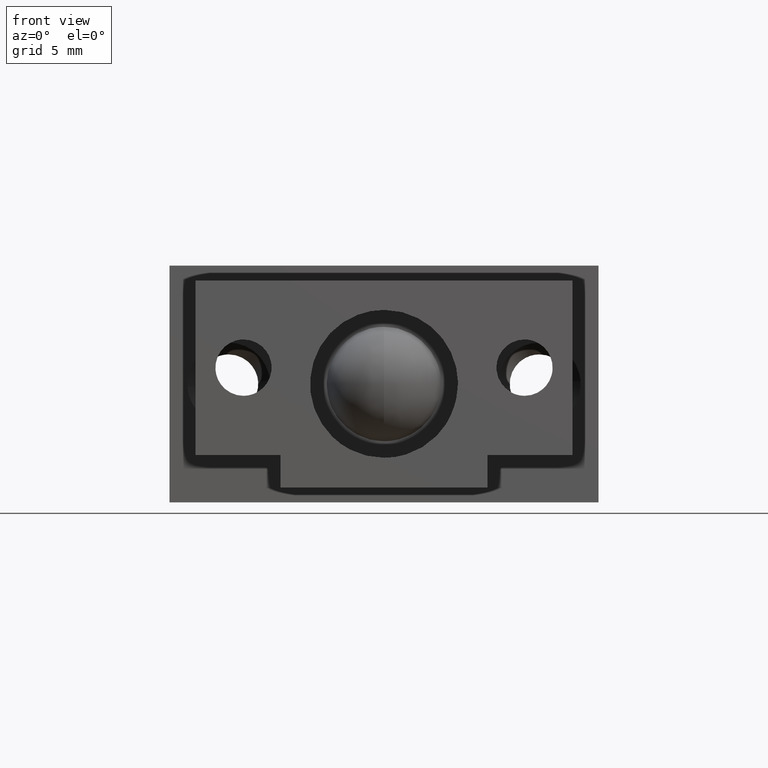
[diagram: clean part render]
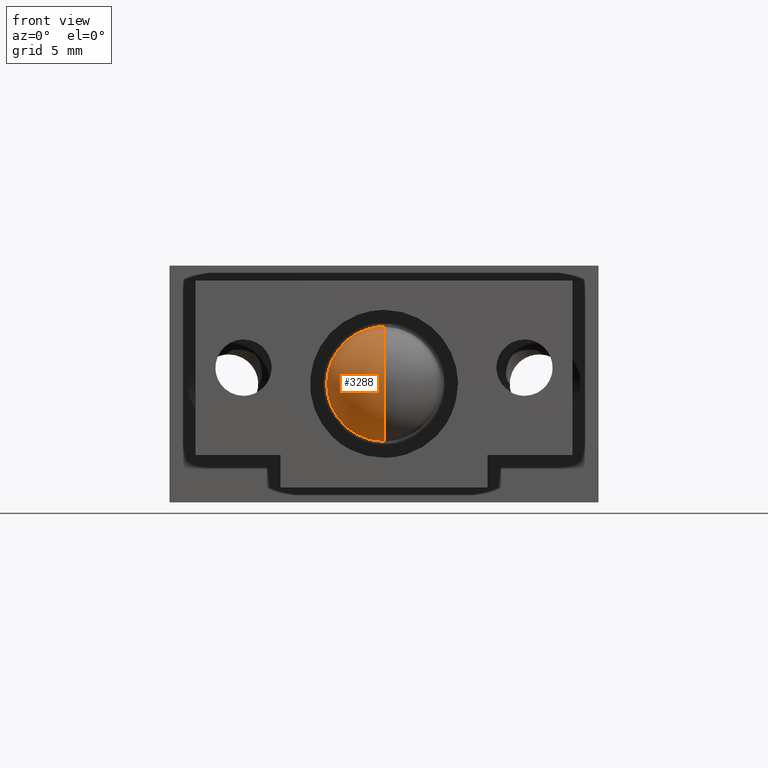
[diagram: same view with one face highlighted and labeled with its STEP entity id]
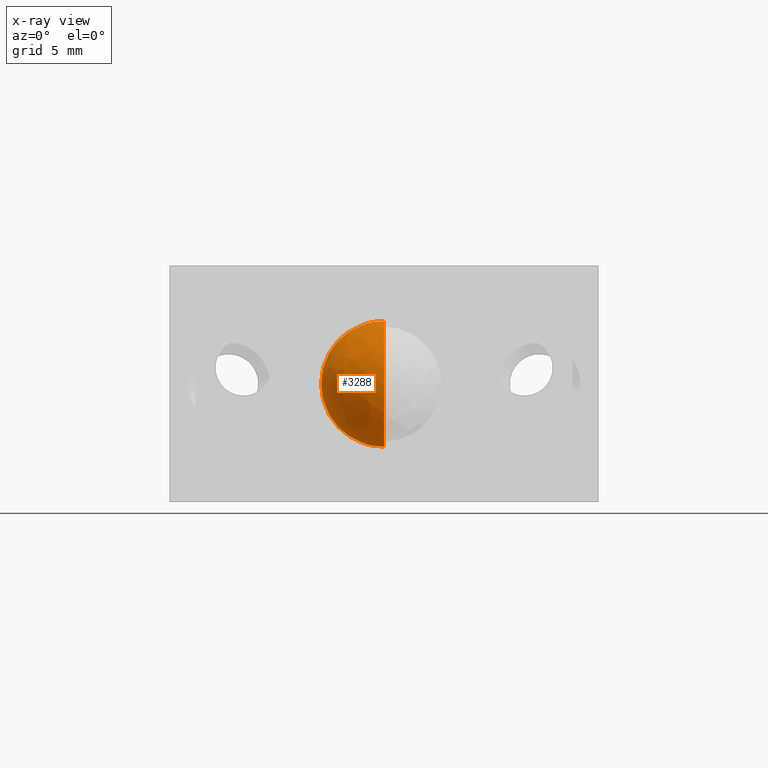
[diagram: x-ray of the same camera — body ghosted, the highlighted face saturated]
A machine part, front view. The second image highlights one B-rep face of the part: STEP entity #3288.
The next image is the same camera in x-ray: the body ghosted, the highlighted face saturated — about 0% of this face is hidden behind the body in this view.
In plain terms, the highlighted face is a freeform B-spline surface patch.
Its self-contained STEP definition (entity closure, byte-faithful):
#3203=CARTESIAN_POINT('',(0.0,-2.500000000000000,2.525751E-015));
#3204=VERTEX_POINT('',#3203);
#3205=CARTESIAN_POINT('',(0.0,6.0,2.525751E-015));
#3206=VERTEX_POINT('',#3205);
#3207=CARTESIAN_POINT('',(0.0,-2.500000000000000,2.525751E-015));
#3208=CARTESIAN_POINT('',(0.0,-2.500000000000000,-4.249999999999998));
#3209=CARTESIAN_POINT('',(0.0,1.750000000000000,-4.249999999999997));
#3210=CARTESIAN_POINT('',(0.0,6.0,-4.249999999999998));
#3211=CARTESIAN_POINT('',(0.0,6.0,2.525751E-015));
#3219=(BOUNDED_CURVE()B_SPLINE_CURVE(2,(#3207,#3208,#3209,#3210,#3211),.UNSPECIFIED.,.F.,.U.)B_SPLINE_CURVE_WITH_KNOTS((3,2,3),(0.0,0.500000000000000,1.0),.UNSPECIFIED.)CURVE()GEOMETRIC_REPRESENTATION_ITEM()RATIONAL_B_SPLINE_CURVE((1.0,0.707106781186548,1.0,0.707106781186548,1.0))REPRESENTATION_ITEM(''));
#3220=EDGE_CURVE('',#3204,#3206,#3219,.T.);
#3222=CARTESIAN_POINT('',(0.0,-2.500000000000000,2.525751E-015));
#3223=CARTESIAN_POINT('',(0.0,-2.500000000000000,4.250000000000003));
#3224=CARTESIAN_POINT('',(0.0,1.750000000000000,4.250000000000003));
#3225=CARTESIAN_POINT('',(0.0,6.0,4.250000000000003));
#3226=CARTESIAN_POINT('',(0.0,6.0,2.525751E-015));
#3234=(BOUNDED_CURVE()B_SPLINE_CURVE(2,(#3222,#3223,#3224,#3225,#3226),.UNSPECIFIED.,.F.,.U.)B_SPLINE_CURVE_WITH_KNOTS((3,2,3),(0.0,0.500000000000000,1.0),.UNSPECIFIED.)CURVE()GEOMETRIC_REPRESENTATION_ITEM()RATIONAL_B_SPLINE_CURVE((1.0,0.707106781186548,1.0,0.707106781186548,1.0))REPRESENTATION_ITEM(''));
#3235=EDGE_CURVE('',#3204,#3206,#3234,.T.);
#3240=CARTESIAN_POINT('',(1.593750000000000,-1.035898502951965,2.785898502951967));
#3241=CARTESIAN_POINT('',(1.042452830188680,-0.773077889465930,3.364103852621243));
#3242=CARTESIAN_POINT('',(0.202380952380953,0.688705332208776,4.245178671164901));
#3243=CARTESIAN_POINT('',(0.202380952380953,2.811294667791224,4.245178671164901));
#3244=CARTESIAN_POINT('',(1.042452830188680,4.273077889465928,3.364103852621243));
#3245=CARTESIAN_POINT('',(1.593750000000000,4.535898502951965,2.785898502951967));
#3246=CARTESIAN_POINT('',(1.042452830188680,-1.614103852621240,2.523077889465933));
#3247=CARTESIAN_POINT('',(0.202380952380953,-1.433884003373674,3.183884003373676));
#3248=CARTESIAN_POINT('',(-1.233870967741935,0.312116901702212,4.313649294893367));
#3249=CARTESIAN_POINT('',(-1.233870967741935,3.187883098297788,4.313649294893367));
#3250=CARTESIAN_POINT('',(0.202380952380953,4.933884003373676,3.183884003373676));
#3251=CARTESIAN_POINT('',(1.042452830188680,5.114103852621241,2.523077889465933));
#3252=CARTESIAN_POINT('',(0.202380952380953,-2.495178671164898,1.061294667791227));
#3253=CARTESIAN_POINT('',(-1.233870967741935,-2.563649294893364,1.437883098297791));
#3254=CARTESIAN_POINT('',(-4.249999999999999,-0.478718802361572,2.228718802361574));
#3255=CARTESIAN_POINT('',(-4.249999999999999,3.978718802361572,2.228718802361574));
#3256=CARTESIAN_POINT('',(-1.233870967741935,6.063649294893365,1.437883098297791));
#3257=CARTESIAN_POINT('',(0.202380952380953,5.995178671164900,1.061294667791227));
#3258=CARTESIAN_POINT('',(0.202380952380953,-2.495178671164898,-1.061294667791222));
#3259=CARTESIAN_POINT('',(-1.233870967741935,-2.563649294893364,-1.437883098297786));
#3260=CARTESIAN_POINT('',(-4.249999999999999,-0.478718802361572,-2.228718802361569));
#3261=CARTESIAN_POINT('',(-4.249999999999999,3.978718802361572,-2.228718802361569));
#3262=CARTESIAN_POINT('',(-1.233870967741935,6.063649294893365,-1.437883098297786));
#3263=CARTESIAN_POINT('',(0.202380952380953,5.995178671164900,-1.061294667791222));
#3264=CARTESIAN_POINT('',(1.042452830188680,-1.614103852621240,-2.523077889465927));
#3265=CARTESIAN_POINT('',(0.202380952380953,-1.433884003373674,-3.183884003373672));
#3266=CARTESIAN_POINT('',(-1.233870967741935,0.312116901702212,-4.313649294893362));
#3267=CARTESIAN_POINT('',(-1.233870967741935,3.187883098297788,-4.313649294893362));
#3268=CARTESIAN_POINT('',(0.202380952380953,4.933884003373676,-3.183884003373672));
#3269=CARTESIAN_POINT('',(1.042452830188680,5.114103852621241,-2.523077889465927));
#3270=CARTESIAN_POINT('',(1.593750000000000,-1.035898502951965,-2.785898502951961));
#3271=CARTESIAN_POINT('',(1.042452830188680,-0.773077889465930,-3.364103852621238));
#3272=CARTESIAN_POINT('',(0.202380952380953,0.688705332208776,-4.245178671164895));
#3273=CARTESIAN_POINT('',(0.202380952380953,2.811294667791224,-4.245178671164895));
#3274=CARTESIAN_POINT('',(1.042452830188680,4.273077889465928,-3.364103852621238));
#3275=CARTESIAN_POINT('',(1.593750000000000,4.535898502951965,-2.785898502951961));
#3283=(BOUNDED_SURFACE()B_SPLINE_SURFACE(2,2,((#3240,#3246,#3252,#3258,#3264,#3270),(#3241,#3247,#3253,#3259,#3265,#3271),(#3242,#3248,#3254,#3260,#3266,#3272),(#3243,#3249,#3255,#3261,#3267,#3273),(#3244,#3250,#3256,#3262,#3268,#3274),(#3245,#3251,#3257,#3263,#3269,#3275)),.UNSPECIFIED.,.F.,.F.,.U.)B_SPLINE_SURFACE_WITH_KNOTS((3,1,1,1,3),(3,1,1,1,3),(0.0,3.918626465690677,7.837252931381354,11.755879397072031,15.674505862762709),(0.0,3.918626465690676,7.837252931381352,11.755879397072031,15.674505862762700),.UNSPECIFIED.)GEOMETRIC_REPRESENTATION_ITEM()RATIONAL_B_SPLINE_SURFACE(((3.200000000000000,2.650000000000000,2.100000000000000,2.100000000000000,2.650000000000000,3.200000000000000),(2.650000000000000,2.100000000000000,1.550000000000000,1.550000000000000,2.100000000000000,2.650000000000000),(2.100000000000000,1.550000000000000,1.0,1.0,1.550000000000000,2.100000000000000),(2.100000000000000,1.550000000000000,1.0,1.0,1.550000000000000,2.100000000000000),(2.650000000000000,2.100000000000000,1.550000000000000,1.550000000000000,2.100000000000000,2.650000000000000),(3.200000000000000,2.650000000000000,2.100000000000000,2.100000000000000,2.650000000000000,3.200000000000000)))REPRESENTATION_ITEM('')SURFACE());
#3284=ORIENTED_EDGE('',*,*,#3235,.T.);
#3285=ORIENTED_EDGE('',*,*,#3220,.F.);
#3286=EDGE_LOOP('',(#3284,#3285));
#3287=FACE_OUTER_BOUND('',#3286,.T.);
#3288=ADVANCED_FACE('',(#3287),#3283,.T.);